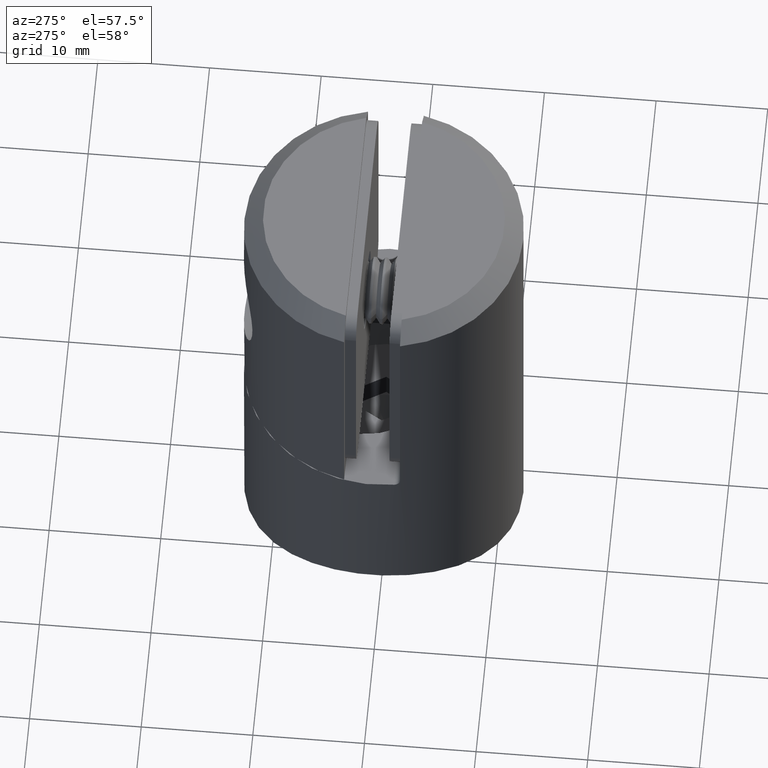
[diagram: clean part render]
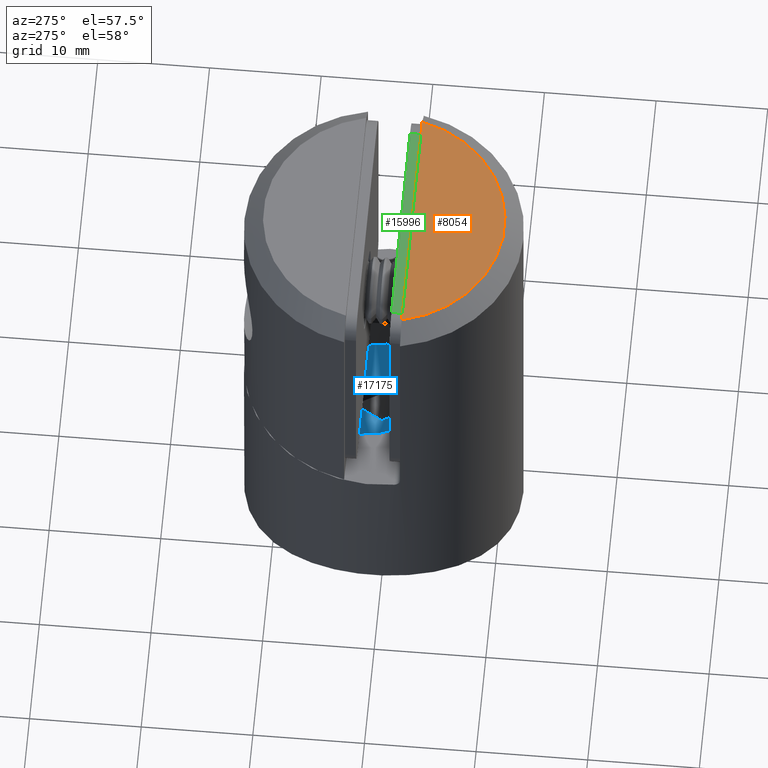
[diagram: same view with three faces highlighted in distinct colors, each labeled with its STEP entity id]
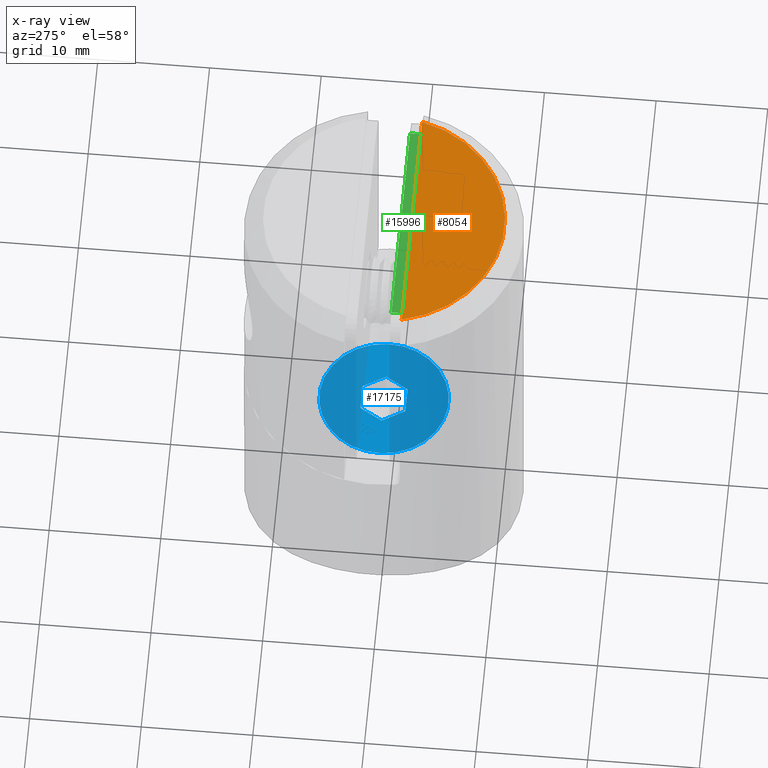
[diagram: x-ray of the same camera — body ghosted, the three highlighted faces saturated]
A machine part, auxiliary view with three faces highlighted in distinct colors.
The next image is the same camera in x-ray (body ghosted, the three faces saturated) — at least one of them is partly hidden behind the body in this view.
Their STEP definitions:

[orange] entity #8054 — the highlighted planar face has unit normal (0, 0, -1).
#984 = AXIS2_PLACEMENT_3D ( 'NONE', #10283, #15318, #8851 ) ;
#2698 = DIRECTION ( 'NONE',  ( -1.000000000000000000, 0.000000000000000000, 0.000000000000000000 ) ) ;
#2912 = VERTEX_POINT ( 'NONE', #6962 ) ;
#6962 = CARTESIAN_POINT ( 'NONE',  ( 10.50666455160723878, -2.500000000000003997, 39.59999999999999432 ) ) ;
#7757 = ORIENTED_EDGE ( 'NONE', *, *, #9033, .T. ) ;
#8054 = ADVANCED_FACE ( 'NONE', ( #14058 ), #14570, .F. ) ;
#8259 = VECTOR ( 'NONE', #11322, 1000.000000000000000 ) ;
#8378 = ORIENTED_EDGE ( 'NONE', *, *, #15761, .T. ) ;
#8851 = DIRECTION ( 'NONE',  ( -1.000000000000000000, 0.000000000000000000, 0.000000000000000000 ) ) ;
#9033 = EDGE_CURVE ( 'NONE', #2912, #14390, #18530, .T. ) ;
#10283 = CARTESIAN_POINT ( 'NONE',  ( 0.000000000000000000, -2.174490824415384115E-17, 39.59999999999999432 ) ) ;
#11101 = CARTESIAN_POINT ( 'NONE',  ( 12.24744871391589207, -2.500000000000003997, 39.59999999999999432 ) ) ;
#11322 = DIRECTION ( 'NONE',  ( -1.000000000000000000, 0.000000000000000000, 0.000000000000000000 ) ) ;
#14058 = FACE_OUTER_BOUND ( 'NONE', #14497, .T. ) ;
#14390 = VERTEX_POINT ( 'NONE', #21320 ) ;
#14497 = EDGE_LOOP ( 'NONE', ( #7757, #8378 ) ) ;
#14570 = PLANE ( 'NONE',  #15471 ) ;
#15318 = DIRECTION ( 'NONE',  ( 0.000000000000000000, 0.000000000000000000, 1.000000000000000000 ) ) ;
#15351 = CIRCLE ( 'NONE', #984, 10.80000000000000604 ) ;
#15471 = AXIS2_PLACEMENT_3D ( 'NONE', #17672, #21229, #2698 ) ;
#15761 = EDGE_CURVE ( 'NONE', #14390, #2912, #15351, .T. ) ;
#17672 = CARTESIAN_POINT ( 'NONE',  ( 0.000000000000000000, -1.325909039277673290E-17, 39.59999999999999432 ) ) ;
#18530 = LINE ( 'NONE', #11101, #8259 ) ;
#21229 = DIRECTION ( 'NONE',  ( -0.000000000000000000, 0.000000000000000000, -1.000000000000000000 ) ) ;
#21320 = CARTESIAN_POINT ( 'NONE',  ( -10.50666455160723167, -2.500000000000003997, 39.59999999999999432 ) ) ;

[blue] entity #17175 — the highlighted planar face has unit normal (-0, 0, 1).
#114 = EDGE_LOOP ( 'NONE', ( #3504 ) ) ;
#257 = DIRECTION ( 'NONE',  ( -0.000000000000000000, 0.000000000000000000, 1.000000000000000000 ) ) ;
#545 = DIRECTION ( 'NONE',  ( -1.000000000000000000, 0.000000000000000000, -0.000000000000000000 ) ) ;
#667 = VERTEX_POINT ( 'NONE', #6131 ) ;
#927 = DIRECTION ( 'NONE',  ( 0.000000000000000000, 1.000000000000000000, 0.000000000000000000 ) ) ;
#1680 = LINE ( 'NONE', #14371, #20162 ) ;
#1723 = EDGE_CURVE ( 'NONE', #21236, #17002, #14963, .T. ) ;
#1727 = VERTEX_POINT ( 'NONE', #4676 ) ;
#1824 = ORIENTED_EDGE ( 'NONE', *, *, #4143, .T. ) ;
#1870 = DIRECTION ( 'NONE',  ( -1.000000000000000000, -0.000000000000000000, -0.000000000000000000 ) ) ;
#2291 = EDGE_CURVE ( 'NONE', #18537, #1727, #20757, .T. ) ;
#2836 = DIRECTION ( 'NONE',  ( 0.000000000000000000, 0.5000000000000001110, -0.8660254037844384856 ) ) ;
#3489 = FACE_OUTER_BOUND ( 'NONE', #114, .T. ) ;
#3504 = ORIENTED_EDGE ( 'NONE', *, *, #11618, .T. ) ;
#3565 = LINE ( 'NONE', #9664, #19910 ) ;
#3624 = EDGE_CURVE ( 'NONE', #3728, #21236, #1680, .T. ) ;
#3728 = VERTEX_POINT ( 'NONE', #4432 ) ;
#4124 = CARTESIAN_POINT ( 'NONE',  ( 0.000000000000000000, 1.160474041071148932, 2.009999999999999787 ) ) ;
#4143 = EDGE_CURVE ( 'NONE', #5200, #18537, #15917, .T. ) ;
#4432 = CARTESIAN_POINT ( 'NONE',  ( -0.000000000000000000, -1.160474041071146267, -2.009999999999999787 ) ) ;
#4503 = CARTESIAN_POINT ( 'NONE',  ( 0.000000000000000000, -1.160474041071146267, 2.009999999999999343 ) ) ;
#4676 = CARTESIAN_POINT ( 'NONE',  ( 0.000000000000000000, -2.320948082142294311, 2.168404344971008868E-16 ) ) ;
#5200 = VERTEX_POINT ( 'NONE', #8977 ) ;
#5682 = CARTESIAN_POINT ( 'NONE',  ( 0.000000000000000000, -1.160474041071146267, 2.009999999999999343 ) ) ;
#6131 = CARTESIAN_POINT ( 'NONE',  ( 0.000000000000000000, 0.000000000000000000, 5.785000000000000142 ) ) ;
#7353 = ORIENTED_EDGE ( 'NONE', *, *, #3624, .T. ) ;
#7561 = EDGE_CURVE ( 'NONE', #17002, #5200, #11234, .T. ) ;
#8195 = DIRECTION ( 'NONE',  ( -0.000000000000000000, -0.5000000000000002220, -0.8660254037844384856 ) ) ;
#8733 = DIRECTION ( 'NONE',  ( 0.000000000000000000, -0.5000000000000003331, 0.8660254037844383745 ) ) ;
#8977 = CARTESIAN_POINT ( 'NONE',  ( 0.000000000000000000, 1.160474041071148932, 2.009999999999999787 ) ) ;
#9241 = AXIS2_PLACEMENT_3D ( 'NONE', #12113, #545, #257 ) ;
#9246 = CIRCLE ( 'NONE', #13141, 5.785000000000000142 ) ;
#9664 = CARTESIAN_POINT ( 'NONE',  ( -0.000000000000000000, -2.320948082142294311, -7.831955557000869341E-18 ) ) ;
#9843 = EDGE_LOOP ( 'NONE', ( #13643, #20661, #7353, #11973, #21611, #1824 ) ) ;
#9973 = CARTESIAN_POINT ( 'NONE',  ( 0.000000000000000000, 1.160474041071148932, -2.009999999999999787 ) ) ;
#11234 = LINE ( 'NONE', #20503, #17245 ) ;
#11618 = EDGE_CURVE ( 'NONE', #667, #667, #9246, .T. ) ;
#11973 = ORIENTED_EDGE ( 'NONE', *, *, #1723, .T. ) ;
#12096 = CARTESIAN_POINT ( 'NONE',  ( 0.000000000000000000, 0.000000000000000000, 0.000000000000000000 ) ) ;
#12113 = CARTESIAN_POINT ( 'NONE',  ( 0.000000000000000000, 0.000000000000000000, 0.000000000000000000 ) ) ;
#12765 = VECTOR ( 'NONE', #19518, 1000.000000000000000 ) ;
#13141 = AXIS2_PLACEMENT_3D ( 'NONE', #12096, #1870, #15380 ) ;
#13346 = EDGE_CURVE ( 'NONE', #1727, #3728, #3565, .T. ) ;
#13643 = ORIENTED_EDGE ( 'NONE', *, *, #2291, .T. ) ;
#14371 = CARTESIAN_POINT ( 'NONE',  ( -0.000000000000000000, -1.160474041071146267, -2.009999999999999787 ) ) ;
#14606 = DIRECTION ( 'NONE',  ( 0.000000000000000000, 0.5000000000000003331, 0.8660254037844383745 ) ) ;
#14763 = CARTESIAN_POINT ( 'NONE',  ( 0.000000000000000000, 1.160474041071148932, -2.009999999999999787 ) ) ;
#14963 = LINE ( 'NONE', #14763, #18133 ) ;
#15380 = DIRECTION ( 'NONE',  ( 0.000000000000000000, 0.000000000000000000, 1.000000000000000000 ) ) ;
#15917 = LINE ( 'NONE', #4124, #12765 ) ;
#17002 = VERTEX_POINT ( 'NONE', #21102 ) ;
#17175 = ADVANCED_FACE ( 'NONE', ( #3489, #18519 ), #20554, .T. ) ;
#17245 = VECTOR ( 'NONE', #8733, 1000.000000000000227 ) ;
#18133 = VECTOR ( 'NONE', #14606, 1000.000000000000227 ) ;
#18519 = FACE_BOUND ( 'NONE', #9843, .T. ) ;
#18537 = VERTEX_POINT ( 'NONE', #5682 ) ;
#19518 = DIRECTION ( 'NONE',  ( 0.000000000000000000, -1.000000000000000000, -1.868550495941740542E-16 ) ) ;
#19910 = VECTOR ( 'NONE', #2836, 1000.000000000000227 ) ;
#20162 = VECTOR ( 'NONE', #927, 1000.000000000000000 ) ;
#20503 = CARTESIAN_POINT ( 'NONE',  ( 0.000000000000000000, 2.320948082142297419, -3.233603273357850147E-17 ) ) ;
#20554 = PLANE ( 'NONE',  #9241 ) ;
#20661 = ORIENTED_EDGE ( 'NONE', *, *, #13346, .T. ) ;
#20757 = LINE ( 'NONE', #4503, #21823 ) ;
#21102 = CARTESIAN_POINT ( 'NONE',  ( 0.000000000000000000, 2.320948082142297419, -3.233603273357850147E-17 ) ) ;
#21236 = VERTEX_POINT ( 'NONE', #9973 ) ;
#21611 = ORIENTED_EDGE ( 'NONE', *, *, #7561, .T. ) ;
#21823 = VECTOR ( 'NONE', #8195, 1000.000000000000114 ) ;

[green] entity #15996 — the highlighted planar face has unit normal (-0, 0, -1).
#954 = CARTESIAN_POINT ( 'NONE',  ( -9.500000000000000000, 1.000000000000000000, 11.49999999999999645 ) ) ;
#2346 = DIRECTION ( 'NONE',  ( 1.000000000000000000, 0.000000000000000000, 7.542275982507857147E-17 ) ) ;
#2357 = VERTEX_POINT ( 'NONE', #8480 ) ;
#2413 = LINE ( 'NONE', #6630, #13255 ) ;
#2656 = VERTEX_POINT ( 'NONE', #21140 ) ;
#2765 = DIRECTION ( 'NONE',  ( 7.542275982507857147E-17, 0.000000000000000000, -1.000000000000000000 ) ) ;
#3000 = VECTOR ( 'NONE', #2346, 1000.000000000000000 ) ;
#3485 = EDGE_LOOP ( 'NONE', ( #17488, #8960, #13635, #7302 ) ) ;
#5056 = VECTOR ( 'NONE', #12795, 1000.000000000000000 ) ;
#5154 = LINE ( 'NONE', #13100, #10443 ) ;
#6151 = DIRECTION ( 'NONE',  ( 1.000000000000000000, 0.000000000000000000, 7.542275982507857147E-17 ) ) ;
#6630 = CARTESIAN_POINT ( 'NONE',  ( 9.499999999999998224, 1.000000000000000000, 11.49999999999999822 ) ) ;
#6669 = AXIS2_PLACEMENT_3D ( 'NONE', #19810, #2765, #11609 ) ;
#7302 = ORIENTED_EDGE ( 'NONE', *, *, #15615, .T. ) ;
#7606 = EDGE_CURVE ( 'NONE', #7954, #2656, #8811, .T. ) ;
#7954 = VERTEX_POINT ( 'NONE', #8933 ) ;
#8199 = DIRECTION ( 'NONE',  ( -0.000000000000000000, 1.000000000000000000, -0.000000000000000000 ) ) ;
#8480 = CARTESIAN_POINT ( 'NONE',  ( 9.499999999999998224, 1.000000000000000000, 11.49999999999999822 ) ) ;
#8811 = LINE ( 'NONE', #20873, #3000 ) ;
#8933 = CARTESIAN_POINT ( 'NONE',  ( -9.500000000000000000, 0.000000000000000000, 11.49999999999999645 ) ) ;
#8960 = ORIENTED_EDGE ( 'NONE', *, *, #17723, .T. ) ;
#10443 = VECTOR ( 'NONE', #6151, 1000.000000000000000 ) ;
#11609 = DIRECTION ( 'NONE',  ( -1.000000000000000000, 0.000000000000000000, -7.542275982507857147E-17 ) ) ;
#12795 = DIRECTION ( 'NONE',  ( 0.000000000000000000, -1.000000000000000000, 0.000000000000000000 ) ) ;
#13100 = CARTESIAN_POINT ( 'NONE',  ( -11.50000000000000000, 1.000000000000000000, 11.49999999999999645 ) ) ;
#13255 = VECTOR ( 'NONE', #8199, 1000.000000000000000 ) ;
#13373 = EDGE_CURVE ( 'NONE', #20476, #2357, #5154, .T. ) ;
#13635 = ORIENTED_EDGE ( 'NONE', *, *, #7606, .T. ) ;
#15615 = EDGE_CURVE ( 'NONE', #2656, #2357, #2413, .T. ) ;
#15996 = ADVANCED_FACE ( 'NONE', ( #21419 ), #21662, .F. ) ;
#16748 = CARTESIAN_POINT ( 'NONE',  ( -9.500000000000000000, 1.000000000000000000, 11.49999999999999645 ) ) ;
#17488 = ORIENTED_EDGE ( 'NONE', *, *, #13373, .F. ) ;
#17723 = EDGE_CURVE ( 'NONE', #20476, #7954, #17955, .T. ) ;
#17955 = LINE ( 'NONE', #954, #5056 ) ;
#19810 = CARTESIAN_POINT ( 'NONE',  ( -11.50000000000000000, 1.000000000000000000, 11.49999999999999645 ) ) ;
#20476 = VERTEX_POINT ( 'NONE', #16748 ) ;
#20873 = CARTESIAN_POINT ( 'NONE',  ( -11.50000000000000000, 0.000000000000000000, 11.49999999999999645 ) ) ;
#21140 = CARTESIAN_POINT ( 'NONE',  ( 9.499999999999998224, 0.000000000000000000, 11.49999999999999822 ) ) ;
#21419 = FACE_OUTER_BOUND ( 'NONE', #3485, .T. ) ;
#21662 = PLANE ( 'NONE',  #6669 ) ;